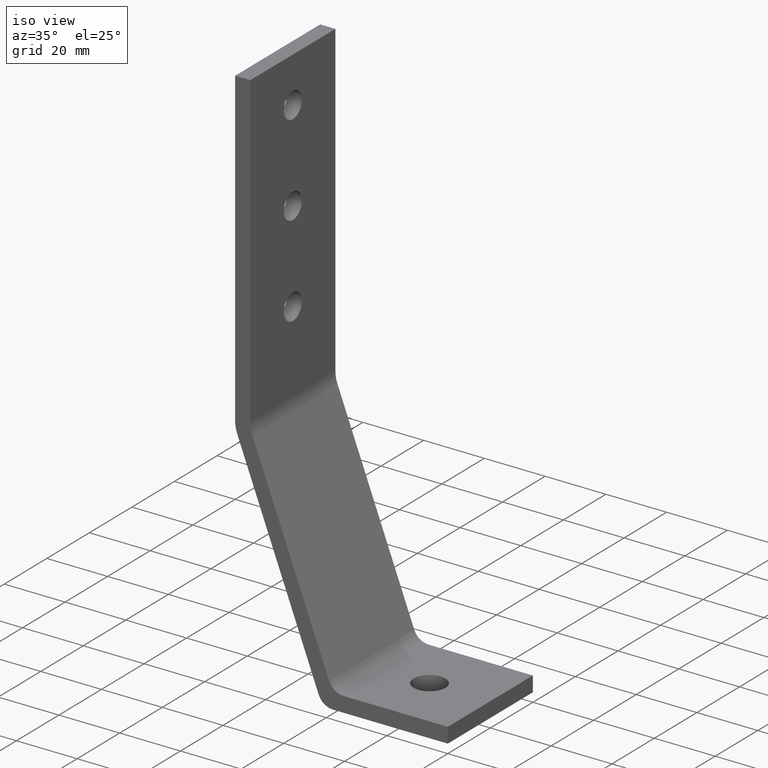
[diagram: clean part render]
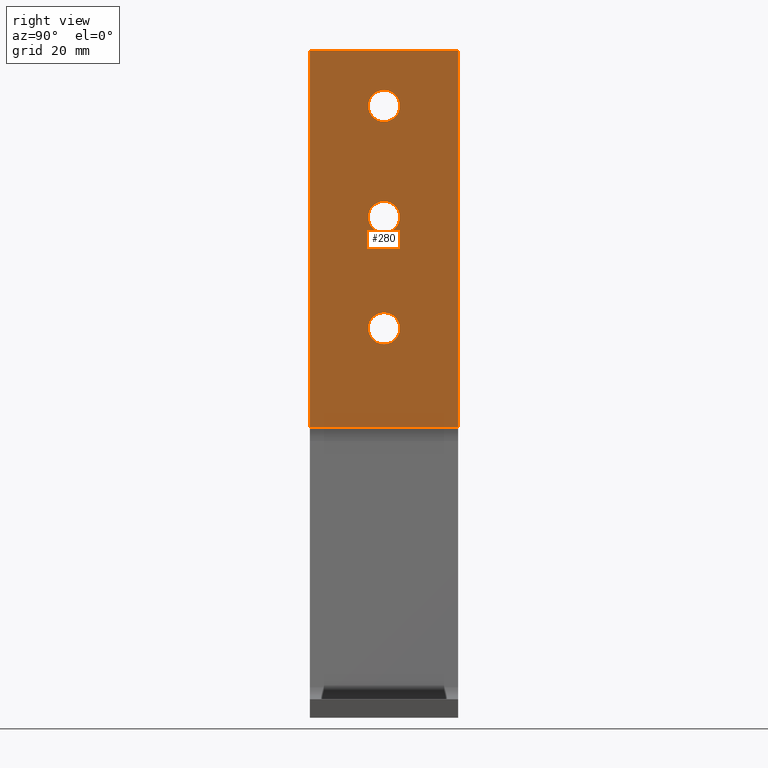
[diagram: tour spotlight — one face highlighted and labeled with its STEP entity id]
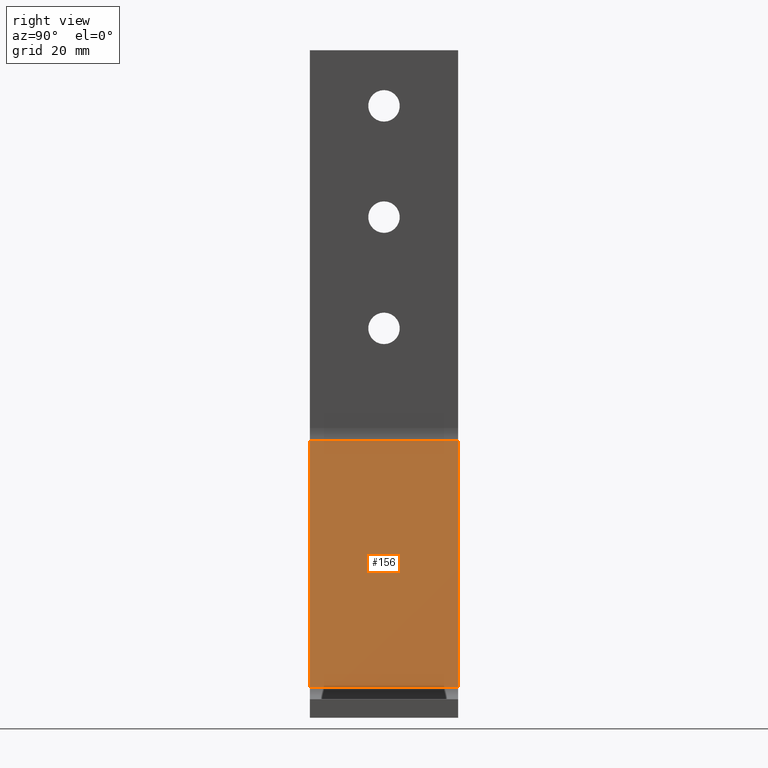
[diagram: tour spotlight — one face highlighted and labeled with its STEP entity id]
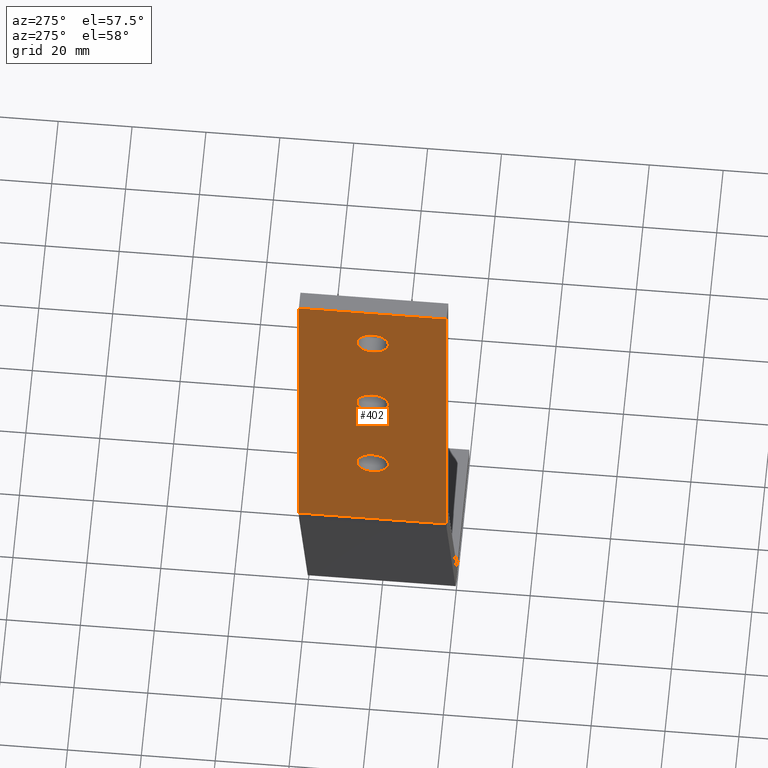
[diagram: tour spotlight — one face highlighted and labeled with its STEP entity id]
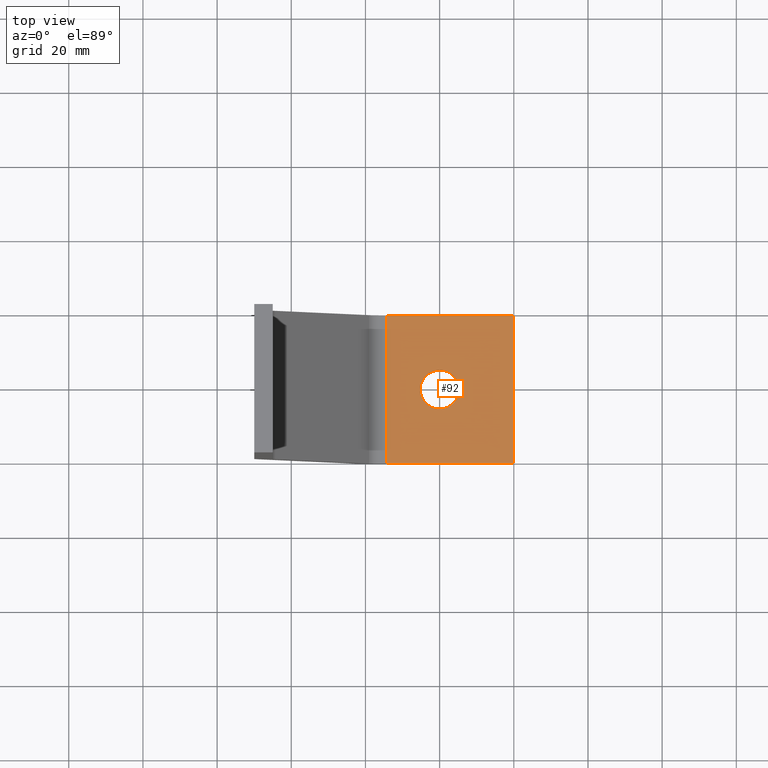
[diagram: tour spotlight — one face highlighted and labeled with its STEP entity id]
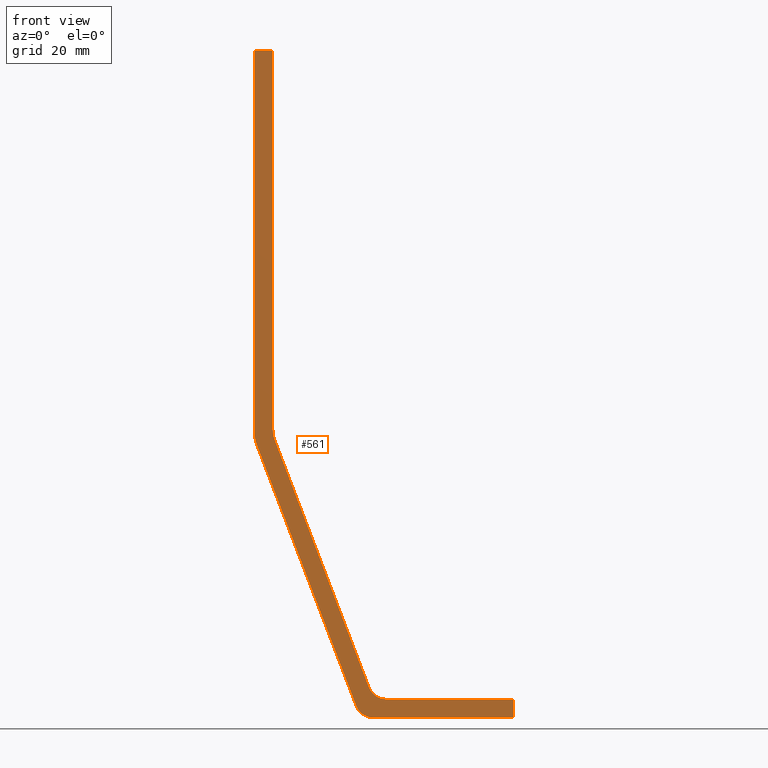
[diagram: tour spotlight — one face highlighted and labeled with its STEP entity id]
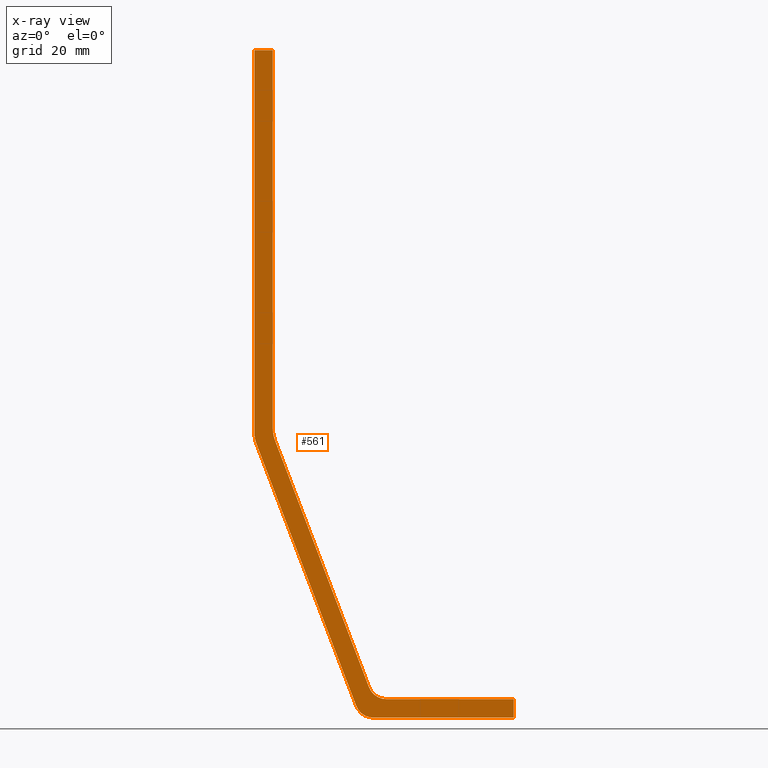
[diagram: x-ray of the same camera — body ghosted, this tour face saturated]
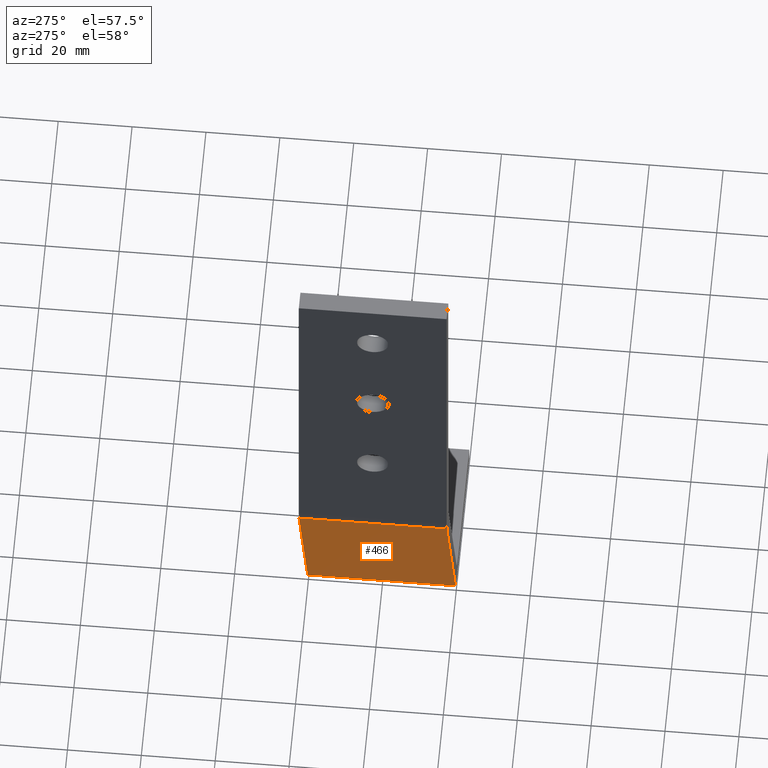
[diagram: tour spotlight — one face highlighted and labeled with its STEP entity id]
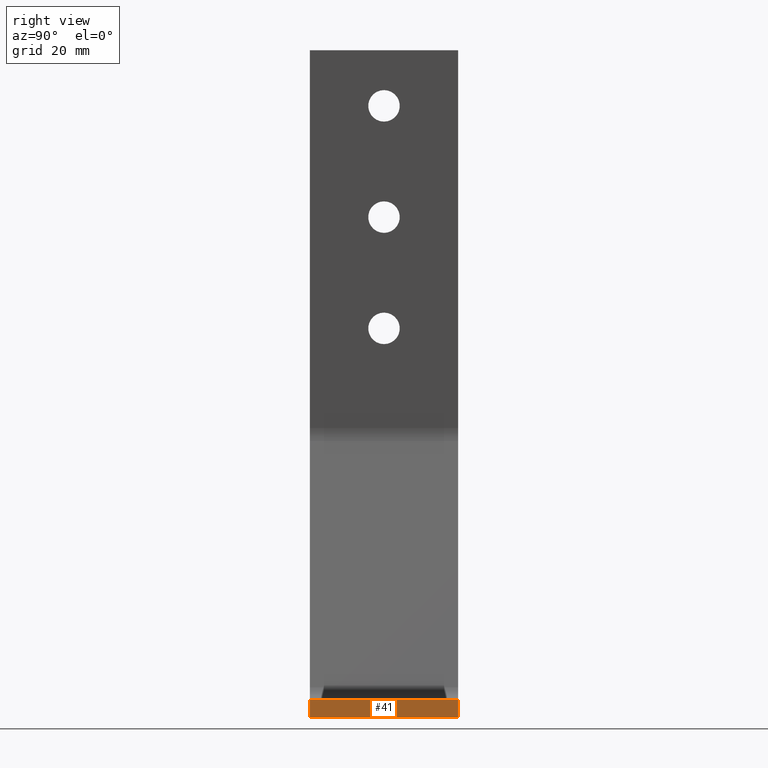
[diagram: tour spotlight — one face highlighted and labeled with its STEP entity id]
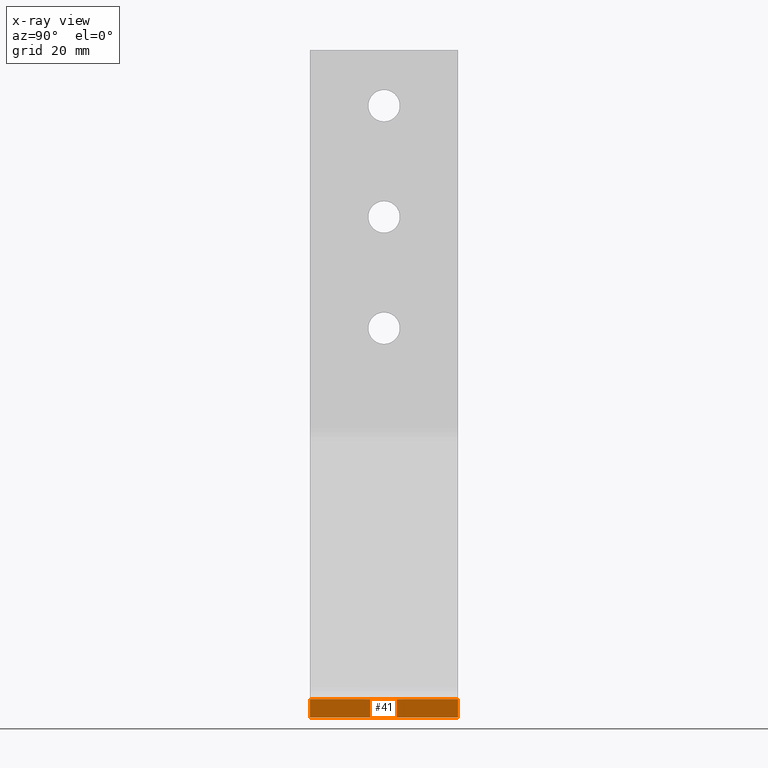
[diagram: x-ray of the same camera — body ghosted, this tour face saturated]
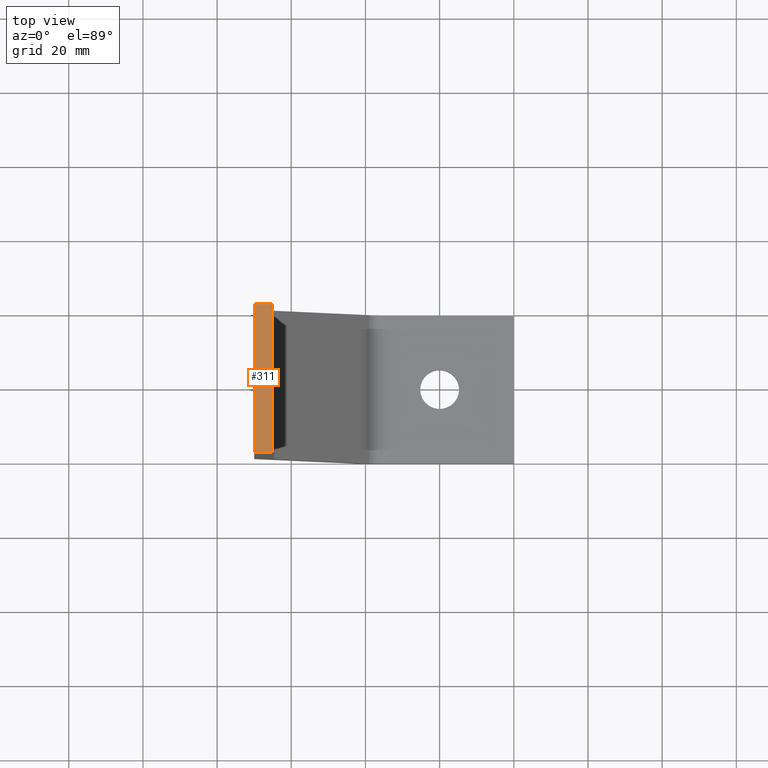
[diagram: tour spotlight — one face highlighted and labeled with its STEP entity id]
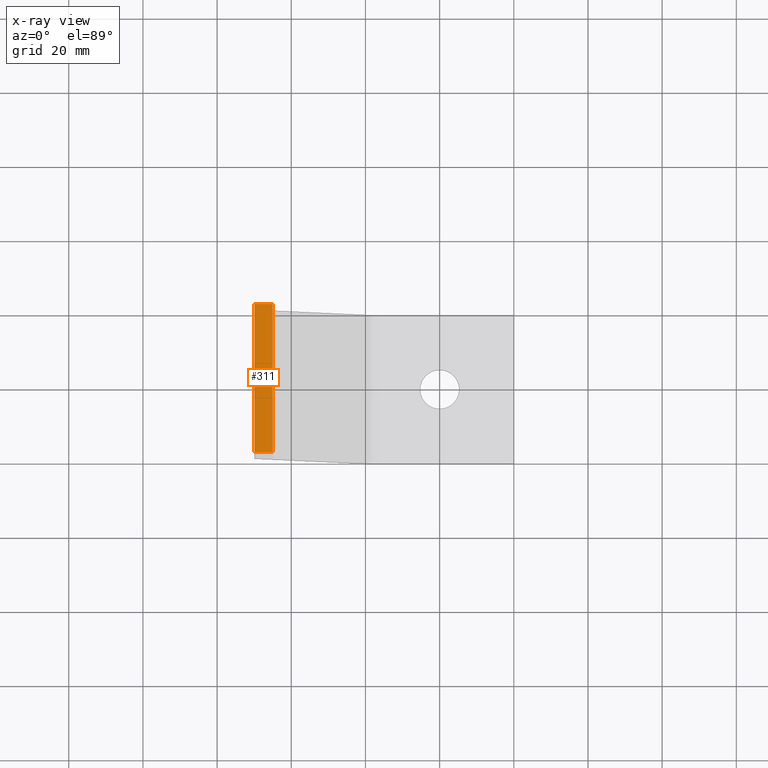
[diagram: x-ray of the same camera — body ghosted, this tour face saturated]
A machine part: a face-by-face anatomy tour. The part has 18 B-rep faces; the first image is the clean iso view, then the 8 largest visible faces are spotlighted one at a time (largest first), each with its STEP entity span.

Face 1 — right view, entity #280. In plain terms, the highlighted planar face has unit normal (-1, 0, 0).
Definition (entity closure, byte-faithful):
#163=CARTESIAN_POINT('',(-44.999999999820389,19.999999999919947,78.173414769789403));
#164=VERTEX_POINT('',#163);
#172=CARTESIAN_POINT('',(-44.999999999820389,-19.999999999919954,78.173414769789403));
#173=VERTEX_POINT('',#172);
#174=CARTESIAN_POINT('',(-44.999999999820389,-19.999999999919954,78.173414769789403));
#175=DIRECTION('',(0.0,1.0,0.0));
#176=VECTOR('',#175,39.999999999839901);
#177=LINE('',#174,#176);
#178=EDGE_CURVE('',#173,#164,#177,.T.);
#190=CARTESIAN_POINT('',(-44.999999999820389,-19.999999999919954,78.173414769789403));
#191=DIRECTION('',(-1.0,0.0,0.0));
#192=DIRECTION('',(0.0,0.0,1.0));
#193=AXIS2_PLACEMENT_3D('',#190,#191,#192);
#194=PLANE('',#193);
#195=ORIENTED_EDGE('',*,*,#178,.T.);
#196=CARTESIAN_POINT('',(-44.999999999820375,19.999999999919954,179.999999999280130));
#197=VERTEX_POINT('',#196);
#198=CARTESIAN_POINT('',(-44.999999999820389,19.999999999919947,78.173414769789403));
#199=DIRECTION('',(0.0,0.0,1.0));
#200=VECTOR('',#199,101.826585229490730);
#201=LINE('',#198,#200);
#202=EDGE_CURVE('',#164,#197,#201,.T.);
#203=ORIENTED_EDGE('',*,*,#202,.T.);
#204=CARTESIAN_POINT('',(-44.999999999820375,-19.999999999919947,179.999999999280130));
#205=VERTEX_POINT('',#204);
#206=CARTESIAN_POINT('',(-44.999999999820375,-19.999999999919947,179.999999999280130));
#207=DIRECTION('',(0.0,1.0,0.0));
#208=VECTOR('',#207,39.999999999839901);
#209=LINE('',#206,#208);
#210=EDGE_CURVE('',#205,#197,#209,.T.);
#211=ORIENTED_EDGE('',*,*,#210,.F.);
#212=CARTESIAN_POINT('',(-44.999999999820389,-19.999999999919954,78.173414769789403));
#213=DIRECTION('',(0.0,0.0,1.0));
#214=VECTOR('',#213,101.826585229490730);
#215=LINE('',#212,#214);
#216=EDGE_CURVE('',#173,#205,#215,.T.);
#217=ORIENTED_EDGE('',*,*,#216,.F.);
#218=EDGE_LOOP('',(#195,#203,#211,#217));
#219=FACE_OUTER_BOUND('',#218,.T.);
#220=CARTESIAN_POINT('',(-44.999999999820375,9.843099E-015,160.749999999357440));
#221=VERTEX_POINT('',#220);
#222=CARTESIAN_POINT('',(-44.999999999820375,1.036357E-014,169.249999999322880));
#223=VERTEX_POINT('',#222);
#224=CARTESIAN_POINT('',(-44.999999999820375,1.010334E-014,164.999999999340160));
#225=DIRECTION('',(1.0,-8.545547E-033,-1.395594E-016));
#226=DIRECTION('',(1.395594E-016,6.123234E-017,1.0));
#227=AXIS2_PLACEMENT_3D('',#224,#225,#226);
#228=CIRCLE('',#227,4.249999999982720);
#229=EDGE_CURVE('',#221,#223,#228,.T.);
#230=ORIENTED_EDGE('',*,*,#229,.F.);
#231=CARTESIAN_POINT('',(-44.999999999820375,1.010334E-014,164.999999999340160));
#232=DIRECTION('',(1.0,-8.545547E-033,-1.395594E-016));
#233=DIRECTION('',(1.395594E-016,6.123234E-017,1.0));
#234=AXIS2_PLACEMENT_3D('',#231,#232,#233);
#235=CIRCLE('',#234,4.249999999982720);
#236=EDGE_CURVE('',#223,#221,#235,.T.);
#237=ORIENTED_EDGE('',*,*,#236,.F.);
#238=EDGE_LOOP('',(#230,#237));
#239=FACE_BOUND('',#238,.T.);
#240=CARTESIAN_POINT('',(-44.999999999820375,8.006128E-015,130.749999999477040));
#241=VERTEX_POINT('',#240);
#242=CARTESIAN_POINT('',(-44.999999999820375,8.526603E-015,139.249999999442480));
#243=VERTEX_POINT('',#242);
#244=CARTESIAN_POINT('',(-44.999999999820375,8.266366E-015,134.999999999459760));
#245=DIRECTION('',(1.0,-8.545547E-033,-1.395594E-016));
#246=DIRECTION('',(1.395594E-016,6.123234E-017,1.0));
#247=AXIS2_PLACEMENT_3D('',#244,#245,#246);
#248=CIRCLE('',#247,4.249999999982720);
#249=EDGE_CURVE('',#241,#243,#248,.T.);
#250=ORIENTED_EDGE('',*,*,#249,.F.);
#251=CARTESIAN_POINT('',(-44.999999999820375,8.266366E-015,134.999999999459760));
#252=DIRECTION('',(1.0,-8.545547E-033,-1.395594E-016));
#253=DIRECTION('',(1.395594E-016,6.123234E-017,1.0));
#254=AXIS2_PLACEMENT_3D('',#251,#252,#253);
#255=CIRCLE('',#254,4.249999999982720);
#256=EDGE_CURVE('',#243,#241,#255,.T.);
#257=ORIENTED_EDGE('',*,*,#256,.F.);
#258=EDGE_LOOP('',(#250,#257));
#259=FACE_BOUND('',#258,.T.);
#260=CARTESIAN_POINT('',(-44.999999999820389,6.169158E-015,100.749999999597110));
#261=VERTEX_POINT('',#260);
#262=CARTESIAN_POINT('',(-44.999999999820389,6.689633E-015,109.249999999562550));
#263=VERTEX_POINT('',#262);
#264=CARTESIAN_POINT('',(-44.999999999820389,6.429396E-015,104.999999999579830));
#265=DIRECTION('',(1.0,-8.545547E-033,-1.395594E-016));
#266=DIRECTION('',(1.395594E-016,6.123234E-017,1.0));
#267=AXIS2_PLACEMENT_3D('',#264,#265,#266);
#268=CIRCLE('',#267,4.249999999982720);
#269=EDGE_CURVE('',#261,#263,#268,.T.);
#270=ORIENTED_EDGE('',*,*,#269,.F.);
#271=CARTESIAN_POINT('',(-44.999999999820389,6.429396E-015,104.999999999579830));
#272=DIRECTION('',(1.0,-8.545547E-033,-1.395594E-016));
#273=DIRECTION('',(1.395594E-016,6.123234E-017,1.0));
#274=AXIS2_PLACEMENT_3D('',#271,#272,#273);
#275=CIRCLE('',#274,4.249999999982720);
#276=EDGE_CURVE('',#263,#261,#275,.T.);
#277=ORIENTED_EDGE('',*,*,#276,.F.);
#278=EDGE_LOOP('',(#270,#277));
#279=FACE_BOUND('',#278,.T.);
#280=ADVANCED_FACE('',(#219,#239,#259,#279),#194,.F.);

Face 2 — right view, entity #156. In plain terms, the highlighted planar face has unit normal (-0.9345, -0, -0.3559).
Definition (entity closure, byte-faithful):
#99=CARTESIAN_POINT('',(-19.059098118035763,19.999999999919943,8.220441279235727));
#100=VERTEX_POINT('',#99);
#108=CARTESIAN_POINT('',(-19.059098118035763,-19.999999999919957,8.220441279235731));
#109=VERTEX_POINT('',#108);
#110=CARTESIAN_POINT('',(-19.059098118035763,-19.999999999919957,8.220441279235731));
#111=DIRECTION('',(0.0,1.0,0.0));
#112=VECTOR('',#111,39.999999999839901);
#113=LINE('',#110,#112);
#114=EDGE_CURVE('',#109,#100,#113,.T.);
#126=CARTESIAN_POINT('',(-19.059098118035763,-19.999999999919957,8.220441279235731));
#127=DIRECTION('',(-0.934519571961319,-2.179331E-017,-0.355911744146261));
#128=DIRECTION('',(-0.355911744146261,5.722282E-017,0.934519571961319));
#129=AXIS2_PLACEMENT_3D('',#126,#127,#128);
#130=PLANE('',#129);
#131=ORIENTED_EDGE('',*,*,#114,.T.);
#132=CARTESIAN_POINT('',(-44.345195719436219,19.999999999919947,74.614297328341053));
#133=VERTEX_POINT('',#132);
#134=CARTESIAN_POINT('',(-19.059098118035763,19.999999999919943,8.220441279235729));
#135=DIRECTION('',(-0.355911744146261,5.000584E-017,0.934519571961319));
#136=VECTOR('',#135,71.045977035838348);
#137=LINE('',#134,#136);
#138=EDGE_CURVE('',#100,#133,#137,.T.);
#139=ORIENTED_EDGE('',*,*,#138,.T.);
#140=CARTESIAN_POINT('',(-44.345195719436219,-19.999999999919954,74.614297328341053));
#141=VERTEX_POINT('',#140);
#142=CARTESIAN_POINT('',(-44.345195719436219,-19.999999999919954,74.614297328341053));
#143=DIRECTION('',(0.0,1.0,0.0));
#144=VECTOR('',#143,39.999999999839901);
#145=LINE('',#142,#144);
#146=EDGE_CURVE('',#141,#133,#145,.T.);
#147=ORIENTED_EDGE('',*,*,#146,.F.);
#148=CARTESIAN_POINT('',(-19.059098118035763,-19.999999999919957,8.220441279235729));
#149=DIRECTION('',(-0.355911744146261,5.000584E-017,0.934519571961319));
#150=VECTOR('',#149,71.045977035838348);
#151=LINE('',#148,#150);
#152=EDGE_CURVE('',#109,#141,#151,.T.);
#153=ORIENTED_EDGE('',*,*,#152,.F.);
#154=EDGE_LOOP('',(#131,#139,#147,#153));
#155=FACE_OUTER_BOUND('',#154,.T.);
#156=ADVANCED_FACE('',(#155),#130,.F.);

Face 3 — auxiliary view, entity #402. In plain terms, the highlighted planar face has unit normal (1, 0, 0).
Definition (entity closure, byte-faithful):
#287=CARTESIAN_POINT('',(-49.999999999800380,19.999999999919954,179.999999999280130));
#288=VERTEX_POINT('',#287);
#295=CARTESIAN_POINT('',(-49.999999999800380,-19.999999999919947,179.999999999280130));
#296=VERTEX_POINT('',#295);
#297=CARTESIAN_POINT('',(-49.999999999800380,-19.999999999919947,179.999999999280130));
#298=DIRECTION('',(0.0,1.0,0.0));
#299=VECTOR('',#298,39.999999999839901);
#300=LINE('',#297,#299);
#301=EDGE_CURVE('',#296,#288,#300,.T.);
#312=CARTESIAN_POINT('',(-49.999999999800380,-19.999999999919947,179.999999999280130));
#313=DIRECTION('',(1.0,0.0,0.0));
#314=DIRECTION('',(0.0,0.0,-1.0));
#315=AXIS2_PLACEMENT_3D('',#312,#313,#314);
#316=PLANE('',#315);
#317=ORIENTED_EDGE('',*,*,#301,.T.);
#318=CARTESIAN_POINT('',(-49.999999999800380,19.999999999919947,77.253517785279072));
#319=VERTEX_POINT('',#318);
#320=CARTESIAN_POINT('',(-49.999999999800380,19.999999999919954,179.999999999280130));
#321=DIRECTION('',(0.0,0.0,-1.0));
#322=VECTOR('',#321,102.746482214001060);
#323=LINE('',#320,#322);
#324=EDGE_CURVE('',#288,#319,#323,.T.);
#325=ORIENTED_EDGE('',*,*,#324,.T.);
#326=CARTESIAN_POINT('',(-49.999999999800380,-19.999999999919954,77.253517785279072));
#327=VERTEX_POINT('',#326);
#328=CARTESIAN_POINT('',(-49.999999999800380,-19.999999999919954,77.253517785279072));
#329=DIRECTION('',(0.0,1.0,0.0));
#330=VECTOR('',#329,39.999999999839901);
#331=LINE('',#328,#330);
#332=EDGE_CURVE('',#327,#319,#331,.T.);
#333=ORIENTED_EDGE('',*,*,#332,.F.);
#334=CARTESIAN_POINT('',(-49.999999999800380,-19.999999999919947,179.999999999280130));
#335=DIRECTION('',(0.0,0.0,-1.0));
#336=VECTOR('',#335,102.746482214001060);
#337=LINE('',#334,#336);
#338=EDGE_CURVE('',#296,#327,#337,.T.);
#339=ORIENTED_EDGE('',*,*,#338,.F.);
#340=EDGE_LOOP('',(#317,#325,#333,#339));
#341=FACE_OUTER_BOUND('',#340,.T.);
#342=CARTESIAN_POINT('',(-49.999999999800380,9.843099E-015,160.749999999357440));
#343=VERTEX_POINT('',#342);
#344=CARTESIAN_POINT('',(-49.999999999800380,1.036357E-014,169.249999999322880));
#345=VERTEX_POINT('',#344);
#346=CARTESIAN_POINT('',(-49.999999999800380,1.010334E-014,164.999999999340160));
#347=DIRECTION('',(-1.0,8.545547E-033,1.395594E-016));
#348=DIRECTION('',(1.395594E-016,6.123234E-017,1.0));
#349=AXIS2_PLACEMENT_3D('',#346,#347,#348);
#350=CIRCLE('',#349,4.249999999982720);
#351=EDGE_CURVE('',#343,#345,#350,.T.);
#352=ORIENTED_EDGE('',*,*,#351,.F.);
#353=CARTESIAN_POINT('',(-49.999999999800380,1.010334E-014,164.999999999340160));
#354=DIRECTION('',(-1.0,8.545547E-033,1.395594E-016));
#355=DIRECTION('',(1.395594E-016,6.123234E-017,1.0));
#356=AXIS2_PLACEMENT_3D('',#353,#354,#355);
#357=CIRCLE('',#356,4.249999999982720);
#358=EDGE_CURVE('',#345,#343,#357,.T.);
#359=ORIENTED_EDGE('',*,*,#358,.F.);
#360=EDGE_LOOP('',(#352,#359));
#361=FACE_BOUND('',#360,.T.);
#362=CARTESIAN_POINT('',(-49.999999999800380,8.006128E-015,130.749999999477040));
#363=VERTEX_POINT('',#362);
#364=CARTESIAN_POINT('',(-49.999999999800380,8.526603E-015,139.249999999442480));
#365=VERTEX_POINT('',#364);
#366=CARTESIAN_POINT('',(-49.999999999800380,8.266366E-015,134.999999999459760));
#367=DIRECTION('',(-1.0,8.545547E-033,1.395594E-016));
#368=DIRECTION('',(1.395594E-016,6.123234E-017,1.0));
#369=AXIS2_PLACEMENT_3D('',#366,#367,#368);
#370=CIRCLE('',#369,4.249999999982720);
#371=EDGE_CURVE('',#363,#365,#370,.T.);
#372=ORIENTED_EDGE('',*,*,#371,.F.);
#373=CARTESIAN_POINT('',(-49.999999999800380,8.266366E-015,134.999999999459760));
#374=DIRECTION('',(-1.0,8.545547E-033,1.395594E-016));
#375=DIRECTION('',(1.395594E-016,6.123234E-017,1.0));
#376=AXIS2_PLACEMENT_3D('',#373,#374,#375);
#377=CIRCLE('',#376,4.249999999982720);
#378=EDGE_CURVE('',#365,#363,#377,.T.);
#379=ORIENTED_EDGE('',*,*,#378,.F.);
#380=EDGE_LOOP('',(#372,#379));
#381=FACE_BOUND('',#380,.T.);
#382=CARTESIAN_POINT('',(-49.999999999800380,6.169158E-015,100.749999999597110));
#383=VERTEX_POINT('',#382);
#384=CARTESIAN_POINT('',(-49.999999999800380,6.689633E-015,109.249999999562550));
#385=VERTEX_POINT('',#384);
#386=CARTESIAN_POINT('',(-49.999999999800380,6.429396E-015,104.999999999579830));
#387=DIRECTION('',(-1.0,8.545547E-033,1.395594E-016));
#388=DIRECTION('',(1.395594E-016,6.123234E-017,1.0));
#389=AXIS2_PLACEMENT_3D('',#386,#387,#388);
#390=CIRCLE('',#389,4.249999999982720);
#391=EDGE_CURVE('',#383,#385,#390,.T.);
#392=ORIENTED_EDGE('',*,*,#391,.F.);
#393=CARTESIAN_POINT('',(-49.999999999800380,6.429396E-015,104.999999999579830));
#394=DIRECTION('',(-1.0,8.545547E-033,1.395594E-016));
#395=DIRECTION('',(1.395594E-016,6.123234E-017,1.0));
#396=AXIS2_PLACEMENT_3D('',#393,#394,#395);
#397=CIRCLE('',#396,4.249999999982720);
#398=EDGE_CURVE('',#385,#383,#397,.T.);
#399=ORIENTED_EDGE('',*,*,#398,.F.);
#400=EDGE_LOOP('',(#392,#399));
#401=FACE_BOUND('',#400,.T.);
#402=ADVANCED_FACE('',(#341,#361,#381,#401),#316,.F.);

Face 4 — top view, entity #92. In plain terms, the highlighted planar face has unit normal (0, 0, -1).
Definition (entity closure, byte-faithful):
#17=CARTESIAN_POINT('',(19.999999999919993,19.999999999919943,4.999999999980096));
#18=VERTEX_POINT('',#17);
#25=CARTESIAN_POINT('',(19.999999999919993,-19.999999999919957,4.999999999980098));
#26=VERTEX_POINT('',#25);
#27=CARTESIAN_POINT('',(19.999999999919993,-19.999999999919957,4.999999999980098));
#28=DIRECTION('',(0.0,1.0,0.0));
#29=VECTOR('',#28,39.999999999839901);
#30=LINE('',#27,#29);
#31=EDGE_CURVE('',#26,#18,#30,.T.);
#42=CARTESIAN_POINT('',(19.999999999919993,-19.999999999919957,4.999999999980098));
#43=DIRECTION('',(0.0,0.0,-1.0));
#44=DIRECTION('',(-1.0,0.0,0.0));
#45=AXIS2_PLACEMENT_3D('',#42,#43,#44);
#46=PLANE('',#45);
#47=ORIENTED_EDGE('',*,*,#31,.T.);
#48=CARTESIAN_POINT('',(-14.386500258247835,19.999999999919943,4.999999999980060));
#49=VERTEX_POINT('',#48);
#50=CARTESIAN_POINT('',(19.999999999919993,19.999999999919943,4.999999999980096));
#51=DIRECTION('',(-1.0,0.0,0.0));
#52=VECTOR('',#51,34.386500258167828);
#53=LINE('',#50,#52);
#54=EDGE_CURVE('',#18,#49,#53,.T.);
#55=ORIENTED_EDGE('',*,*,#54,.T.);
#56=CARTESIAN_POINT('',(-14.386500258247835,-19.999999999919957,4.999999999980061));
#57=VERTEX_POINT('',#56);
#58=CARTESIAN_POINT('',(-14.386500258247835,-19.999999999919957,4.999999999980061));
#59=DIRECTION('',(0.0,1.0,0.0));
#60=VECTOR('',#59,39.999999999839901);
#61=LINE('',#58,#60);
#62=EDGE_CURVE('',#57,#49,#61,.T.);
#63=ORIENTED_EDGE('',*,*,#62,.F.);
#64=CARTESIAN_POINT('',(19.999999999919993,-19.999999999919957,4.999999999980098));
#65=DIRECTION('',(-1.0,0.0,0.0));
#66=VECTOR('',#65,34.386500258167828);
#67=LINE('',#64,#66);
#68=EDGE_CURVE('',#26,#57,#67,.T.);
#69=ORIENTED_EDGE('',*,*,#68,.F.);
#70=EDGE_LOOP('',(#47,#55,#63,#69));
#71=FACE_OUTER_BOUND('',#70,.T.);
#72=CARTESIAN_POINT('',(5.250000000000000,3.061617E-016,4.999999999980097));
#73=VERTEX_POINT('',#72);
#74=CARTESIAN_POINT('',(-5.250000000000000,3.061617E-016,4.999999999980097));
#75=VERTEX_POINT('',#74);
#76=CARTESIAN_POINT('',(0.0,3.061617E-016,4.999999999980097));
#77=DIRECTION('',(0.0,6.123234E-017,1.0));
#78=DIRECTION('',(-1.0,0.0,0.0));
#79=AXIS2_PLACEMENT_3D('',#76,#77,#78);
#80=CIRCLE('',#79,5.250000000000000);
#81=EDGE_CURVE('',#73,#75,#80,.T.);
#82=ORIENTED_EDGE('',*,*,#81,.F.);
#83=CARTESIAN_POINT('',(0.0,3.061617E-016,4.999999999980097));
#84=DIRECTION('',(0.0,6.123234E-017,1.0));
#85=DIRECTION('',(-1.0,0.0,0.0));
#86=AXIS2_PLACEMENT_3D('',#83,#84,#85);
#87=CIRCLE('',#86,5.250000000000000);
#88=EDGE_CURVE('',#75,#73,#87,.T.);
#89=ORIENTED_EDGE('',*,*,#88,.F.);
#90=EDGE_LOOP('',(#82,#89));
#91=FACE_BOUND('',#90,.T.);
#92=ADVANCED_FACE('',(#71,#91),#46,.F.);

Face 5 — front view, entity #561. An x-ray twin of the same camera follows (body ghosted, this face saturated) — the face is partly hidden behind the body. In plain terms, the highlighted planar face has unit normal (0, -1, 0).
Definition (entity closure, byte-faithful):
#7=CARTESIAN_POINT('',(19.999999999919993,-19.999999999919957,1.224647E-015));
#8=VERTEX_POINT('',#7);
#25=CARTESIAN_POINT('',(19.999999999919993,-19.999999999919957,4.999999999980098));
#26=VERTEX_POINT('',#25);
#33=CARTESIAN_POINT('',(19.999999999919993,-19.999999999919957,8.881784E-016));
#34=DIRECTION('',(0.0,0.0,1.0));
#35=VECTOR('',#34,4.999999999980097);
#36=LINE('',#33,#35);
#37=EDGE_CURVE('',#8,#26,#36,.T.);
#56=CARTESIAN_POINT('',(-14.386500258247835,-19.999999999919957,4.999999999980061));
#57=VERTEX_POINT('',#56);
#64=CARTESIAN_POINT('',(19.999999999919993,-19.999999999919957,4.999999999980098));
#65=DIRECTION('',(-1.0,0.0,0.0));
#66=VECTOR('',#65,34.386500258167828);
#67=LINE('',#64,#66);
#68=EDGE_CURVE('',#26,#57,#67,.T.);
#108=CARTESIAN_POINT('',(-19.059098118035763,-19.999999999919957,8.220441279235731));
#109=VERTEX_POINT('',#108);
#116=CARTESIAN_POINT('',(-14.386500258247921,-19.999999999919957,9.999999999960172));
#117=DIRECTION('',(0.0,1.0,-6.123234E-017));
#118=DIRECTION('',(-0.934519571961301,-2.179331E-017,-0.355911744146309));
#119=AXIS2_PLACEMENT_3D('',#116,#117,#118);
#120=CIRCLE('',#119,4.999999999980108);
#121=EDGE_CURVE('',#57,#109,#120,.T.);
#140=CARTESIAN_POINT('',(-44.345195719436219,-19.999999999919954,74.614297328341053));
#141=VERTEX_POINT('',#140);
#148=CARTESIAN_POINT('',(-19.059098118035763,-19.999999999919957,8.220441279235729));
#149=DIRECTION('',(-0.355911744146261,5.000584E-017,0.934519571961319));
#150=VECTOR('',#149,71.045977035838348);
#151=LINE('',#148,#150);
#152=EDGE_CURVE('',#109,#141,#151,.T.);
#172=CARTESIAN_POINT('',(-44.999999999820389,-19.999999999919954,78.173414769789403));
#173=VERTEX_POINT('',#172);
#180=CARTESIAN_POINT('',(-34.999999999855611,-19.999999999919954,78.173414769790213));
#181=DIRECTION('',(0.0,1.0,-6.123234E-017));
#182=DIRECTION('',(-1.0,-4.959934E-030,-8.100187E-014));
#183=AXIS2_PLACEMENT_3D('',#180,#181,#182);
#184=CIRCLE('',#183,9.999999999964766);
#185=EDGE_CURVE('',#141,#173,#184,.T.);
#204=CARTESIAN_POINT('',(-44.999999999820375,-19.999999999919947,179.999999999280130));
#205=VERTEX_POINT('',#204);
#212=CARTESIAN_POINT('',(-44.999999999820389,-19.999999999919954,78.173414769789403));
#213=DIRECTION('',(0.0,0.0,1.0));
#214=VECTOR('',#213,101.826585229490730);
#215=LINE('',#212,#214);
#216=EDGE_CURVE('',#173,#205,#215,.T.);
#295=CARTESIAN_POINT('',(-49.999999999800380,-19.999999999919947,179.999999999280130));
#296=VERTEX_POINT('',#295);
#303=CARTESIAN_POINT('',(-44.999999999820375,-19.999999999919947,179.999999999280130));
#304=DIRECTION('',(-1.0,0.0,0.0));
#305=VECTOR('',#304,4.999999999980005);
#306=LINE('',#303,#305);
#307=EDGE_CURVE('',#205,#296,#306,.T.);
#326=CARTESIAN_POINT('',(-49.999999999800380,-19.999999999919954,77.253517785279072));
#327=VERTEX_POINT('',#326);
#334=CARTESIAN_POINT('',(-49.999999999800380,-19.999999999919947,179.999999999280130));
#335=DIRECTION('',(0.0,0.0,-1.0));
#336=VECTOR('',#335,102.746482214001060);
#337=LINE('',#334,#336);
#338=EDGE_CURVE('',#296,#327,#337,.T.);
#418=CARTESIAN_POINT('',(-49.345195719416267,-19.999999999919954,73.694400343830509));
#419=VERTEX_POINT('',#418);
#426=CARTESIAN_POINT('',(-39.999999999835751,-19.999999999919954,77.253517785279627));
#427=DIRECTION('',(0.0,-1.0,6.123234E-017));
#428=DIRECTION('',(-0.934519571961354,-2.179331E-017,-0.355911744146167));
#429=AXIS2_PLACEMENT_3D('',#426,#427,#428);
#430=CIRCLE('',#429,9.999999999964658);
#431=EDGE_CURVE('',#327,#419,#430,.T.);
#450=CARTESIAN_POINT('',(-22.505191036664243,-19.999999999919957,3.220441279255823));
#451=VERTEX_POINT('',#450);
#458=CARTESIAN_POINT('',(-49.345195719416267,-19.999999999919954,73.694400343830509));
#459=DIRECTION('',(0.355911744146264,-4.711074E-017,-0.934519571961318));
#460=VECTOR('',#459,75.411966938977926);
#461=LINE('',#458,#460);
#462=EDGE_CURVE('',#419,#451,#461,.T.);
#482=CARTESIAN_POINT('',(-17.832593176876344,-19.999999999919957,1.224647E-015));
#483=VERTEX_POINT('',#482);
#490=CARTESIAN_POINT('',(-17.832593176876259,-19.999999999919957,4.999999999980092));
#491=DIRECTION('',(0.0,-1.0,6.123234E-017));
#492=DIRECTION('',(-1.705303E-014,-6.123234E-017,-1.0));
#493=AXIS2_PLACEMENT_3D('',#490,#491,#492);
#494=CIRCLE('',#493,4.999999999980106);
#495=EDGE_CURVE('',#451,#483,#494,.T.);
#505=CARTESIAN_POINT('',(-17.832593176876344,-19.999999999919957,1.224647E-015));
#506=DIRECTION('',(1.0,0.0,0.0));
#507=VECTOR('',#506,37.832593176796337);
#508=LINE('',#505,#507);
#509=EDGE_CURVE('',#483,#8,#508,.T.);
#542=CARTESIAN_POINT('',(-57.000004724659917,-19.999999999919957,-18.000004724772602));
#543=DIRECTION('',(0.0,-1.0,0.0));
#544=DIRECTION('',(1.0,0.0,0.0));
#545=AXIS2_PLACEMENT_3D('',#542,#543,#544);
#546=PLANE('',#545);
#547=ORIENTED_EDGE('',*,*,#37,.T.);
#548=ORIENTED_EDGE('',*,*,#68,.T.);
#549=ORIENTED_EDGE('',*,*,#121,.T.);
#550=ORIENTED_EDGE('',*,*,#152,.T.);
#551=ORIENTED_EDGE('',*,*,#185,.T.);
#552=ORIENTED_EDGE('',*,*,#216,.T.);
#553=ORIENTED_EDGE('',*,*,#307,.T.);
#554=ORIENTED_EDGE('',*,*,#338,.T.);
#555=ORIENTED_EDGE('',*,*,#431,.T.);
#556=ORIENTED_EDGE('',*,*,#462,.T.);
#557=ORIENTED_EDGE('',*,*,#495,.T.);
#558=ORIENTED_EDGE('',*,*,#509,.T.);
#559=EDGE_LOOP('',(#547,#548,#549,#550,#551,#552,#553,#554,#555,#556,#557,#558));
#560=FACE_OUTER_BOUND('',#559,.T.);
#561=ADVANCED_FACE('',(#560),#546,.T.);

Face 6 — auxiliary view, entity #466. In plain terms, the highlighted planar face has unit normal (0.9345, 0, 0.3559).
Definition (entity closure, byte-faithful):
#409=CARTESIAN_POINT('',(-49.345195719416267,19.999999999919947,73.694400343830509));
#410=VERTEX_POINT('',#409);
#418=CARTESIAN_POINT('',(-49.345195719416267,-19.999999999919954,73.694400343830509));
#419=VERTEX_POINT('',#418);
#420=CARTESIAN_POINT('',(-49.345195719416267,-19.999999999919954,73.694400343830509));
#421=DIRECTION('',(0.0,1.0,0.0));
#422=VECTOR('',#421,39.999999999839901);
#423=LINE('',#420,#422);
#424=EDGE_CURVE('',#419,#410,#423,.T.);
#436=CARTESIAN_POINT('',(-49.345195719416267,-19.999999999919954,73.694400343830509));
#437=DIRECTION('',(0.934519571961318,2.179331E-017,0.355911744146264));
#438=DIRECTION('',(0.355911744146264,-5.722282E-017,-0.934519571961318));
#439=AXIS2_PLACEMENT_3D('',#436,#437,#438);
#440=PLANE('',#439);
#441=ORIENTED_EDGE('',*,*,#424,.T.);
#442=CARTESIAN_POINT('',(-22.505191036664243,19.999999999919943,3.220441279255820));
#443=VERTEX_POINT('',#442);
#444=CARTESIAN_POINT('',(-49.345195719416267,19.999999999919947,73.694400343830509));
#445=DIRECTION('',(0.355911744146264,-4.711074E-017,-0.934519571961318));
#446=VECTOR('',#445,75.411966938977926);
#447=LINE('',#444,#446);
#448=EDGE_CURVE('',#410,#443,#447,.T.);
#449=ORIENTED_EDGE('',*,*,#448,.T.);
#450=CARTESIAN_POINT('',(-22.505191036664243,-19.999999999919957,3.220441279255823));
#451=VERTEX_POINT('',#450);
#452=CARTESIAN_POINT('',(-22.505191036664243,-19.999999999919957,3.220441279255823));
#453=DIRECTION('',(0.0,1.0,0.0));
#454=VECTOR('',#453,39.999999999839901);
#455=LINE('',#452,#454);
#456=EDGE_CURVE('',#451,#443,#455,.T.);
#457=ORIENTED_EDGE('',*,*,#456,.F.);
#458=CARTESIAN_POINT('',(-49.345195719416267,-19.999999999919954,73.694400343830509));
#459=DIRECTION('',(0.355911744146264,-4.711074E-017,-0.934519571961318));
#460=VECTOR('',#459,75.411966938977926);
#461=LINE('',#458,#460);
#462=EDGE_CURVE('',#419,#451,#461,.T.);
#463=ORIENTED_EDGE('',*,*,#462,.F.);
#464=EDGE_LOOP('',(#441,#449,#457,#463));
#465=FACE_OUTER_BOUND('',#464,.T.);
#466=ADVANCED_FACE('',(#465),#440,.F.);

Face 7 — right view, entity #41. An x-ray twin of the same camera follows (body ghosted, this face saturated) — the face is partly hidden behind the body. In plain terms, the highlighted planar face has unit normal (-1, 0, 0).
Definition (entity closure, byte-faithful):
#2=CARTESIAN_POINT('',(19.999999999919993,-19.999999999919957,1.224647E-015));
#3=DIRECTION('',(-1.0,0.0,0.0));
#4=DIRECTION('',(0.0,0.0,1.0));
#5=AXIS2_PLACEMENT_3D('',#2,#3,#4);
#6=PLANE('',#5);
#7=CARTESIAN_POINT('',(19.999999999919993,-19.999999999919957,1.224647E-015));
#8=VERTEX_POINT('',#7);
#9=CARTESIAN_POINT('',(19.999999999919993,19.999999999919943,-1.224647E-015));
#10=VERTEX_POINT('',#9);
#11=CARTESIAN_POINT('',(19.999999999919993,-19.999999999919957,1.224647E-015));
#12=DIRECTION('',(0.0,1.0,0.0));
#13=VECTOR('',#12,39.999999999839901);
#14=LINE('',#11,#13);
#15=EDGE_CURVE('',#8,#10,#14,.T.);
#16=ORIENTED_EDGE('',*,*,#15,.T.);
#17=CARTESIAN_POINT('',(19.999999999919993,19.999999999919943,4.999999999980096));
#18=VERTEX_POINT('',#17);
#19=CARTESIAN_POINT('',(19.999999999919993,19.999999999919943,-8.881784E-016));
#20=DIRECTION('',(0.0,0.0,1.0));
#21=VECTOR('',#20,4.999999999980097);
#22=LINE('',#19,#21);
#23=EDGE_CURVE('',#10,#18,#22,.T.);
#24=ORIENTED_EDGE('',*,*,#23,.T.);
#25=CARTESIAN_POINT('',(19.999999999919993,-19.999999999919957,4.999999999980098));
#26=VERTEX_POINT('',#25);
#27=CARTESIAN_POINT('',(19.999999999919993,-19.999999999919957,4.999999999980098));
#28=DIRECTION('',(0.0,1.0,0.0));
#29=VECTOR('',#28,39.999999999839901);
#30=LINE('',#27,#29);
#31=EDGE_CURVE('',#26,#18,#30,.T.);
#32=ORIENTED_EDGE('',*,*,#31,.F.);
#33=CARTESIAN_POINT('',(19.999999999919993,-19.999999999919957,8.881784E-016));
#34=DIRECTION('',(0.0,0.0,1.0));
#35=VECTOR('',#34,4.999999999980097);
#36=LINE('',#33,#35);
#37=EDGE_CURVE('',#8,#26,#36,.T.);
#38=ORIENTED_EDGE('',*,*,#37,.F.);
#39=EDGE_LOOP('',(#16,#24,#32,#38));
#40=FACE_OUTER_BOUND('',#39,.T.);
#41=ADVANCED_FACE('',(#40),#6,.F.);

Face 8 — top view, entity #311. An x-ray twin of the same camera follows (body ghosted, this face saturated) — the face is partly hidden behind the body. In plain terms, the highlighted planar face has unit normal (0, 0, -1).
Definition (entity closure, byte-faithful):
#196=CARTESIAN_POINT('',(-44.999999999820375,19.999999999919954,179.999999999280130));
#197=VERTEX_POINT('',#196);
#204=CARTESIAN_POINT('',(-44.999999999820375,-19.999999999919947,179.999999999280130));
#205=VERTEX_POINT('',#204);
#206=CARTESIAN_POINT('',(-44.999999999820375,-19.999999999919947,179.999999999280130));
#207=DIRECTION('',(0.0,1.0,0.0));
#208=VECTOR('',#207,39.999999999839901);
#209=LINE('',#206,#208);
#210=EDGE_CURVE('',#205,#197,#209,.T.);
#281=CARTESIAN_POINT('',(-44.999999999820375,-19.999999999919947,179.999999999280130));
#282=DIRECTION('',(0.0,0.0,-1.0));
#283=DIRECTION('',(-1.0,0.0,0.0));
#284=AXIS2_PLACEMENT_3D('',#281,#282,#283);
#285=PLANE('',#284);
#286=ORIENTED_EDGE('',*,*,#210,.T.);
#287=CARTESIAN_POINT('',(-49.999999999800380,19.999999999919954,179.999999999280130));
#288=VERTEX_POINT('',#287);
#289=CARTESIAN_POINT('',(-44.999999999820375,19.999999999919954,179.999999999280130));
#290=DIRECTION('',(-1.0,0.0,0.0));
#291=VECTOR('',#290,4.999999999980005);
#292=LINE('',#289,#291);
#293=EDGE_CURVE('',#197,#288,#292,.T.);
#294=ORIENTED_EDGE('',*,*,#293,.T.);
#295=CARTESIAN_POINT('',(-49.999999999800380,-19.999999999919947,179.999999999280130));
#296=VERTEX_POINT('',#295);
#297=CARTESIAN_POINT('',(-49.999999999800380,-19.999999999919947,179.999999999280130));
#298=DIRECTION('',(0.0,1.0,0.0));
#299=VECTOR('',#298,39.999999999839901);
#300=LINE('',#297,#299);
#301=EDGE_CURVE('',#296,#288,#300,.T.);
#302=ORIENTED_EDGE('',*,*,#301,.F.);
#303=CARTESIAN_POINT('',(-44.999999999820375,-19.999999999919947,179.999999999280130));
#304=DIRECTION('',(-1.0,0.0,0.0));
#305=VECTOR('',#304,4.999999999980005);
#306=LINE('',#303,#305);
#307=EDGE_CURVE('',#205,#296,#306,.T.);
#308=ORIENTED_EDGE('',*,*,#307,.F.);
#309=EDGE_LOOP('',(#286,#294,#302,#308));
#310=FACE_OUTER_BOUND('',#309,.T.);
#311=ADVANCED_FACE('',(#310),#285,.F.);